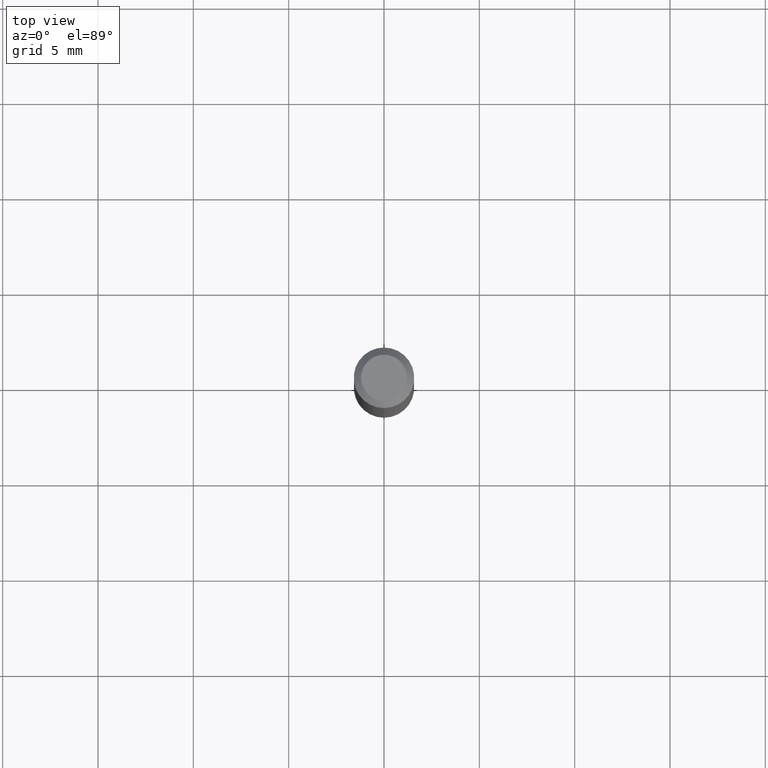
[diagram: clean part render]
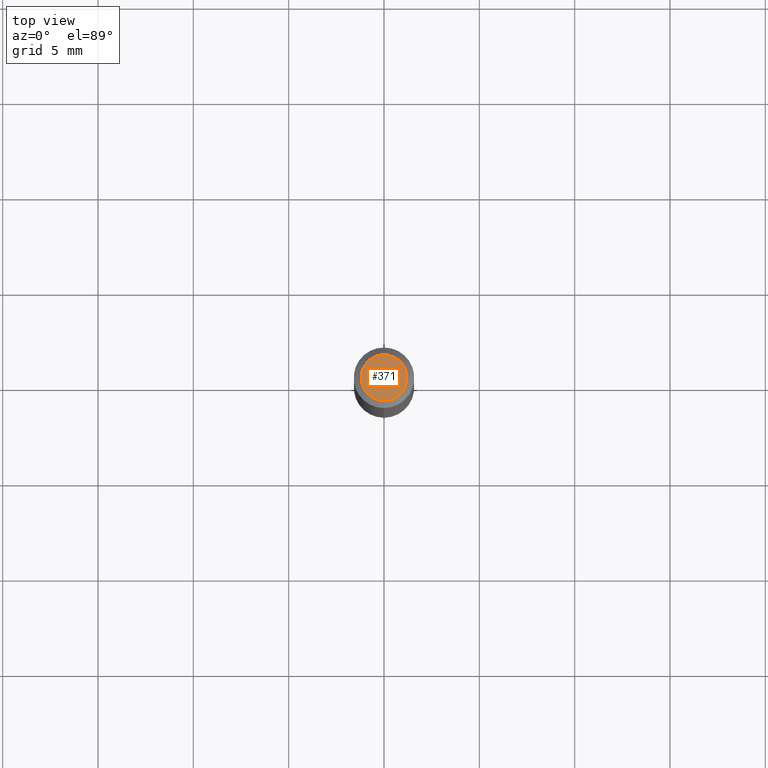
[diagram: same view with one face highlighted and labeled with its STEP entity id]
A machine part, top view. The second image highlights one B-rep face of the part: STEP entity #371.
In plain terms, the highlighted planar face has unit normal (0, -0, -1).
Its self-contained STEP definition (entity closure, byte-faithful):
#11 = EDGE_CURVE ( 'NONE', #125, #319, #16, .T. ) ;
#16 = CIRCLE ( 'NONE', #123, 0.04749999999999999362 ) ;
#54 = DIRECTION ( 'NONE',  ( -2.445524153731471341E-29, 3.491402078006607573E-15, 1.000000000000000000 ) ) ;
#67 = DIRECTION ( 'NONE',  ( -6.982962677686266711E-15, -1.000000000000000000, 3.491402078006607967E-15 ) ) ;
#90 = DIRECTION ( 'NONE',  ( 2.445524153731470781E-29, -3.491402078006607967E-15, -1.000000000000000000 ) ) ;
#115 = AXIS2_PLACEMENT_3D ( 'NONE', #351, #90, #400 ) ;
#123 = AXIS2_PLACEMENT_3D ( 'NONE', #405, #54, #213 ) ;
#125 = VERTEX_POINT ( 'NONE', #476 ) ;
#141 = CARTESIAN_POINT ( 'NONE',  ( 2.167733270038758827E-46, -3.094808297856797066E-32, -8.864084481566663675E-18 ) ) ;
#149 = EDGE_LOOP ( 'NONE', ( #236, #240 ) ) ;
#198 = FACE_OUTER_BOUND ( 'NONE', #149, .T. ) ;
#213 = DIRECTION ( 'NONE',  ( -6.982962677686266711E-15, -1.000000000000000000, 3.491402078006607967E-15 ) ) ;
#230 = CIRCLE ( 'NONE', #320, 0.04749999999999999362 ) ;
#236 = ORIENTED_EDGE ( 'NONE', *, *, #11, .T. ) ;
#240 = ORIENTED_EDGE ( 'NONE', *, *, #296, .T. ) ;
#272 = CARTESIAN_POINT ( 'NONE',  ( -3.773273898774340269E-16, -0.04749999999999999362, 1.569775142237472048E-16 ) ) ;
#274 = PLANE ( 'NONE',  #115 ) ;
#296 = EDGE_CURVE ( 'NONE', #319, #125, #230, .T. ) ;
#319 = VERTEX_POINT ( 'NONE', #272 ) ;
#320 = AXIS2_PLACEMENT_3D ( 'NONE', #141, #457, #67 ) ;
#351 = CARTESIAN_POINT ( 'NONE',  ( 3.316907271900976096E-16, 0.04749999999999999362, -1.702736409460971926E-16 ) ) ;
#371 = ADVANCED_FACE ( 'NONE', ( #198 ), #274, .F. ) ;
#400 = DIRECTION ( 'NONE',  ( 6.982962677686265922E-15, 1.000000000000000000, -3.491402078006607967E-15 ) ) ;
#405 = CARTESIAN_POINT ( 'NONE',  ( 2.167733270038758827E-46, -3.094808297856797066E-32, -8.864084481566663675E-18 ) ) ;
#457 = DIRECTION ( 'NONE',  ( -2.445524153731471341E-29, 3.491402078006607573E-15, 1.000000000000000000 ) ) ;
#476 = CARTESIAN_POINT ( 'NONE',  ( 3.840629472727447874E-16, 0.04749999999999999362, -1.747056831868805136E-16 ) ) ;